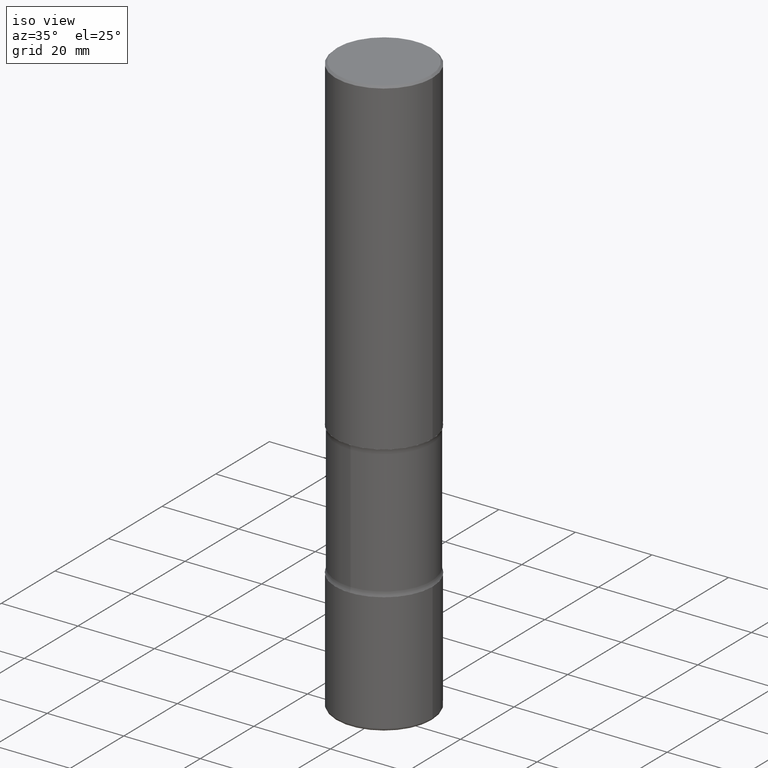
[diagram: clean part render]
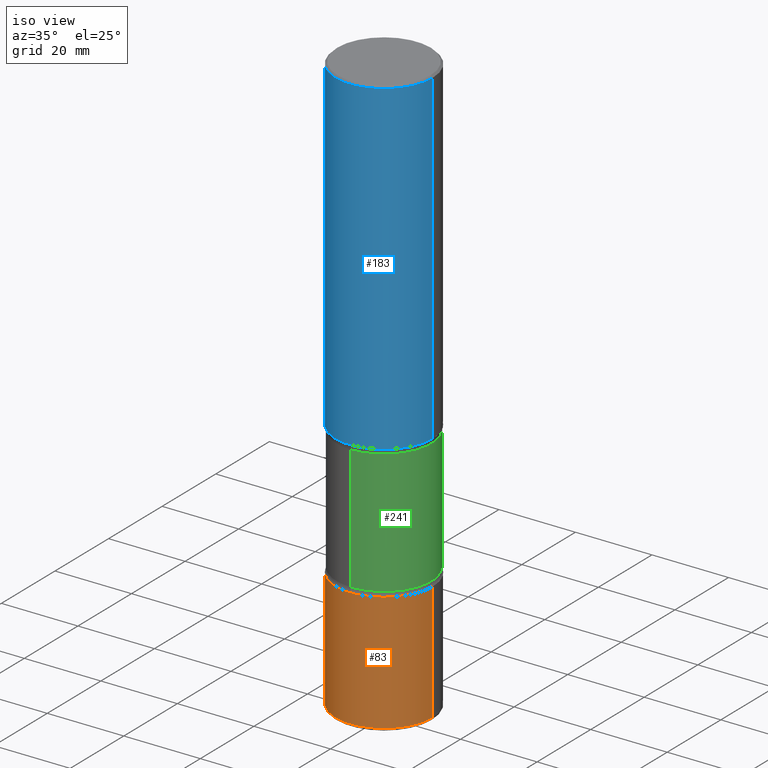
[diagram: same view with three faces highlighted in distinct colors, each labeled with its STEP entity id]
A machine part, iso view with three faces highlighted in distinct colors.
Their STEP definitions:

[orange] entity #83 — the highlighted cylindrical surface (partial cylindrical patch) has radius 12.7 mm, axis along (-0, 0, 1).
#13 = DIRECTION ( 'NONE',  ( -2.445468806185136877E-29, 3.491481338843145188E-15, 1.000000000000000000 ) ) ;
#24 = DIRECTION ( 'NONE',  ( -2.445468806185136877E-29, 3.491481338843145188E-15, 1.000000000000000000 ) ) ;
#39 = ORIENTED_EDGE ( 'NONE', *, *, #209, .T. ) ;
#46 = CARTESIAN_POINT ( 'NONE',  ( 1.459944877292526494E-28, -2.084414359289357934E-14, -5.969999999999999751 ) ) ;
#52 = FACE_OUTER_BOUND ( 'NONE', #280, .T. ) ;
#64 = AXIS2_PLACEMENT_3D ( 'NONE', #46, #211, #169 ) ;
#67 = CARTESIAN_POINT ( 'NONE',  ( -0.5000000000000006661, 3.552713678800505663E-15, -2.459467545127455974E-29 ) ) ;
#83 = ADVANCED_FACE ( 'NONE', ( #52 ), #454, .T. ) ;
#112 = ORIENTED_EDGE ( 'NONE', *, *, #255, .T. ) ;
#113 = CARTESIAN_POINT ( 'NONE',  ( 0.5000000000000007772, -2.433562493173672216E-14, -5.969999999999999751 ) ) ;
#140 = DIRECTION ( 'NONE',  ( -2.445468806185136597E-29, 3.491481338843145583E-15, 1.000000000000000000 ) ) ;
#143 = DIRECTION ( 'NONE',  ( 1.000000000000000000, -6.982962677686265133E-15, 0.000000000000000000 ) ) ;
#162 = CIRCLE ( 'NONE', #64, 0.5000000000000006661 ) ;
#169 = DIRECTION ( 'NONE',  ( 1.000000000000000000, -6.982962677686269077E-15, 0.000000000000000000 ) ) ;
#195 = EDGE_CURVE ( 'NONE', #222, #242, #439, .T. ) ;
#209 = EDGE_CURVE ( 'NONE', #343, #296, #162, .T. ) ;
#211 = DIRECTION ( 'NONE',  ( -2.445468806185136597E-29, 3.491481338843145583E-15, 1.000000000000000000 ) ) ;
#222 = VERTEX_POINT ( 'NONE', #450 ) ;
#229 = CARTESIAN_POINT ( 'NONE',  ( 1.161597682937940108E-28, -1.658453635950494339E-14, -4.750000000000000000 ) ) ;
#240 = CARTESIAN_POINT ( 'NONE',  ( 0.5000000000000006661, -3.491481338843138088E-15, 2.438088387897971260E-29 ) ) ;
#242 = VERTEX_POINT ( 'NONE', #422 ) ;
#255 = EDGE_CURVE ( 'NONE', #296, #242, #551, .T. ) ;
#260 = LINE ( 'NONE', #67, #469 ) ;
#273 = DIRECTION ( 'NONE',  ( 1.000000000000000000, -6.982962677686266711E-15, 4.876176775795935793E-29 ) ) ;
#280 = EDGE_LOOP ( 'NONE', ( #298, #39, #112, #427 ) ) ;
#294 = AXIS2_PLACEMENT_3D ( 'NONE', #229, #445, #143 ) ;
#296 = VERTEX_POINT ( 'NONE', #113 ) ;
#298 = ORIENTED_EDGE ( 'NONE', *, *, #366, .F. ) ;
#309 = CARTESIAN_POINT ( 'NONE',  ( 0.000000000000000000, 0.000000000000000000, 0.000000000000000000 ) ) ;
#343 = VERTEX_POINT ( 'NONE', #462 ) ;
#366 = EDGE_CURVE ( 'NONE', #343, #222, #260, .T. ) ;
#375 = AXIS2_PLACEMENT_3D ( 'NONE', #309, #140, #273 ) ;
#399 = VECTOR ( 'NONE', #24, 39.37007874015748143 ) ;
#422 = CARTESIAN_POINT ( 'NONE',  ( 0.5000000000000006661, -2.007601769834807990E-14, -4.750000000000000000 ) ) ;
#427 = ORIENTED_EDGE ( 'NONE', *, *, #195, .F. ) ;
#439 = CIRCLE ( 'NONE', #294, 0.5000000000000006661 ) ;
#445 = DIRECTION ( 'NONE',  ( -2.445468806185136597E-29, 3.491481338843145583E-15, 1.000000000000000000 ) ) ;
#450 = CARTESIAN_POINT ( 'NONE',  ( -0.5000000000000006661, -1.516162629739875255E-14, -4.750000000000000000 ) ) ;
#454 = CYLINDRICAL_SURFACE ( 'NONE', #375, 0.5000000000000006661 ) ;
#462 = CARTESIAN_POINT ( 'NONE',  ( -0.5000000000000007772, -1.729142991409307210E-14, -5.969999999999999751 ) ) ;
#469 = VECTOR ( 'NONE', #13, 39.37007874015748143 ) ;
#551 = LINE ( 'NONE', #240, #399 ) ;

[blue] entity #183 — the highlighted cylindrical surface (partial cylindrical patch) has radius 12.7 mm, axis along (-0, 0, 1).
#4 = DIRECTION ( 'NONE',  ( 1.000000000000000000, -6.982962677686267499E-15, 0.000000000000000000 ) ) ;
#70 = EDGE_CURVE ( 'NONE', #166, #256, #347, .T. ) ;
#81 = DIRECTION ( 'NONE',  ( -2.445468806185136877E-29, 3.491481338843145188E-15, 1.000000000000000000 ) ) ;
#84 = ORIENTED_EDGE ( 'NONE', *, *, #521, .T. ) ;
#88 = DIRECTION ( 'NONE',  ( -2.445468806185136597E-29, 3.491481338843145583E-15, 1.000000000000000000 ) ) ;
#116 = VERTEX_POINT ( 'NONE', #357 ) ;
#121 = CARTESIAN_POINT ( 'NONE',  ( 4.890937612370273159E-31, -6.982962677686291609E-17, -0.02000000000000000042 ) ) ;
#166 = VERTEX_POINT ( 'NONE', #458 ) ;
#171 = CYLINDRICAL_SURFACE ( 'NONE', #302, 0.5000000000000006661 ) ;
#173 = VERTEX_POINT ( 'NONE', #367 ) ;
#183 = ADVANCED_FACE ( 'NONE', ( #536 ), #171, .T. ) ;
#193 = CARTESIAN_POINT ( 'NONE',  ( 0.5000000000000005551, -3.500078625662632235E-15, -0.02000000000000000042 ) ) ;
#221 = CARTESIAN_POINT ( 'NONE',  ( -0.5000000000000006661, 3.552713678800505663E-15, -2.459467545127455974E-29 ) ) ;
#228 = CIRCLE ( 'NONE', #247, 0.5000000000000007772 ) ;
#235 = ORIENTED_EDGE ( 'NONE', *, *, #557, .T. ) ;
#247 = AXIS2_PLACEMENT_3D ( 'NONE', #300, #444, #4 ) ;
#248 = DIRECTION ( 'NONE',  ( 1.000000000000000000, -6.982962677686266711E-15, 0.000000000000000000 ) ) ;
#256 = VERTEX_POINT ( 'NONE', #193 ) ;
#257 = CARTESIAN_POINT ( 'NONE',  ( 0.5000000000000006661, -3.491481338843138088E-15, 2.438088387897971260E-29 ) ) ;
#268 = ORIENTED_EDGE ( 'NONE', *, *, #70, .F. ) ;
#270 = CARTESIAN_POINT ( 'NONE',  ( 0.000000000000000000, 0.000000000000000000, 0.000000000000000000 ) ) ;
#297 = LINE ( 'NONE', #257, #501 ) ;
#300 = CARTESIAN_POINT ( 'NONE',  ( 8.253457220874837135E-29, -1.178374951859561767E-14, -3.375000000000000444 ) ) ;
#302 = AXIS2_PLACEMENT_3D ( 'NONE', #270, #88, #484 ) ;
#325 = EDGE_LOOP ( 'NONE', ( #520, #235, #84, #268 ) ) ;
#342 = EDGE_CURVE ( 'NONE', #116, #166, #539, .T. ) ;
#347 = CIRCLE ( 'NONE', #514, 0.5000000000000005551 ) ;
#357 = CARTESIAN_POINT ( 'NONE',  ( -0.5000000000000007772, -2.374075893885732456E-15, -3.375000000000000444 ) ) ;
#367 = CARTESIAN_POINT ( 'NONE',  ( 0.5000000000000007772, -1.527523085743875734E-14, -3.375000000000000444 ) ) ;
#383 = VECTOR ( 'NONE', #453, 39.37007874015748143 ) ;
#395 = DIRECTION ( 'NONE',  ( -2.445468806185136597E-29, 3.491481338843145583E-15, 1.000000000000000000 ) ) ;
#444 = DIRECTION ( 'NONE',  ( -2.445468806185136597E-29, 3.491481338843145583E-15, 1.000000000000000000 ) ) ;
#453 = DIRECTION ( 'NONE',  ( -2.445468806185136877E-29, 3.491481338843145188E-15, 1.000000000000000000 ) ) ;
#458 = CARTESIAN_POINT ( 'NONE',  ( -0.5000000000000005551, 3.421651712066274396E-15, -0.02000000000000000042 ) ) ;
#484 = DIRECTION ( 'NONE',  ( 1.000000000000000000, -6.982962677686266711E-15, 4.876176775795935793E-29 ) ) ;
#501 = VECTOR ( 'NONE', #81, 39.37007874015748143 ) ;
#514 = AXIS2_PLACEMENT_3D ( 'NONE', #121, #395, #248 ) ;
#520 = ORIENTED_EDGE ( 'NONE', *, *, #342, .F. ) ;
#521 = EDGE_CURVE ( 'NONE', #173, #256, #297, .T. ) ;
#536 = FACE_OUTER_BOUND ( 'NONE', #325, .T. ) ;
#539 = LINE ( 'NONE', #221, #383 ) ;
#557 = EDGE_CURVE ( 'NONE', #116, #173, #228, .T. ) ;

[green] entity #241 — the highlighted cylindrical surface (partial cylindrical patch) has radius 12.446 mm, axis along (0, -0, -1).
#17 = DIRECTION ( 'NONE',  ( 6.982962677686266711E-15, 1.000000000000000000, -3.345119992241953553E-15 ) ) ;
#20 = CARTESIAN_POINT ( 'NONE',  ( -3.395946508896794322E-15, -0.4900000000000163669, -4.701010205144333653 ) ) ;
#30 = CARTESIAN_POINT ( 'NONE',  ( 1.148869742576547963E-28, -1.642419601879555421E-14, -4.701010205144335430 ) ) ;
#49 = ORIENTED_EDGE ( 'NONE', *, *, #354, .F. ) ;
#51 = DIRECTION ( 'NONE',  ( 2.598079946832093802E-29, -3.272933499350004525E-15, -1.000000000000000000 ) ) ;
#72 = CYLINDRICAL_SURFACE ( 'NONE', #515, 0.4900000000000001021 ) ;
#129 = AXIS2_PLACEMENT_3D ( 'NONE', #412, #51, #17 ) ;
#138 = DIRECTION ( 'NONE',  ( 2.598079946832093802E-29, -3.272933499350004525E-15, -1.000000000000000000 ) ) ;
#147 = ORIENTED_EDGE ( 'NONE', *, *, #384, .T. ) ;
#170 = VERTEX_POINT ( 'NONE', #180 ) ;
#174 = LINE ( 'NONE', #215, #425 ) ;
#178 = AXIS2_PLACEMENT_3D ( 'NONE', #30, #426, #327 ) ;
#180 = CARTESIAN_POINT ( 'NONE',  ( -3.395946508896831399E-15, -0.4900000000000125366, -3.423989794855664126 ) ) ;
#191 = DIRECTION ( 'NONE',  ( 2.598079946832093802E-29, -3.272933499350004525E-15, -1.000000000000000000 ) ) ;
#213 = CIRCLE ( 'NONE', #129, 0.4900000000000002132 ) ;
#215 = CARTESIAN_POINT ( 'NONE',  ( 3.421651712066419546E-15, 0.4899999999999793965, -6.000000000000001776 ) ) ;
#231 = VERTEX_POINT ( 'NONE', #447 ) ;
#241 = ADVANCED_FACE ( 'NONE', ( #378 ), #72, .T. ) ;
#263 = EDGE_CURVE ( 'NONE', #285, #331, #338, .T. ) ;
#284 = DIRECTION ( 'NONE',  ( 6.982962677686266711E-15, 1.000000000000000000, -2.230079994827969693E-15 ) ) ;
#285 = VERTEX_POINT ( 'NONE', #464 ) ;
#312 = VECTOR ( 'NONE', #191, 39.37007874015748143 ) ;
#321 = EDGE_CURVE ( 'NONE', #170, #331, #380, .T. ) ;
#327 = DIRECTION ( 'NONE',  ( 6.982962677686265922E-15, 1.000000000000000000, -3.345119992241955130E-15 ) ) ;
#331 = VERTEX_POINT ( 'NONE', #20 ) ;
#332 = CARTESIAN_POINT ( 'NONE',  ( -3.361644018907902538E-15, -0.4900000000000208078, -5.999999999999999112 ) ) ;
#338 = CIRCLE ( 'NONE', #178, 0.4899999999999999911 ) ;
#354 = EDGE_CURVE ( 'NONE', #231, #285, #174, .T. ) ;
#378 = FACE_OUTER_BOUND ( 'NONE', #502, .T. ) ;
#380 = LINE ( 'NONE', #332, #312 ) ;
#384 = EDGE_CURVE ( 'NONE', #231, #170, #213, .T. ) ;
#412 = CARTESIAN_POINT ( 'NONE',  ( 8.170896306099193759E-29, -1.224459313860807689E-14, -3.423989794855665902 ) ) ;
#419 = DIRECTION ( 'NONE',  ( 2.598079946832093802E-29, -3.272933499350004525E-15, -1.000000000000000000 ) ) ;
#423 = ORIENTED_EDGE ( 'NONE', *, *, #321, .T. ) ;
#425 = VECTOR ( 'NONE', #138, 39.37007874015748143 ) ;
#426 = DIRECTION ( 'NONE',  ( 2.598079946832093802E-29, -3.272933499350004525E-15, -1.000000000000000000 ) ) ;
#447 = CARTESIAN_POINT ( 'NONE',  ( 3.421651712066353676E-15, 0.4899999999999880007, -3.423989794855667679 ) ) ;
#464 = CARTESIAN_POINT ( 'NONE',  ( 3.421651712066385231E-15, 0.4899999999999835598, -4.701010205144337206 ) ) ;
#502 = EDGE_LOOP ( 'NONE', ( #147, #423, #549, #49 ) ) ;
#504 = CARTESIAN_POINT ( 'NONE',  ( 1.486357676291951651E-28, -2.067570323369244855E-14, -6.000000000000000888 ) ) ;
#515 = AXIS2_PLACEMENT_3D ( 'NONE', #504, #419, #284 ) ;
#549 = ORIENTED_EDGE ( 'NONE', *, *, #263, .F. ) ;